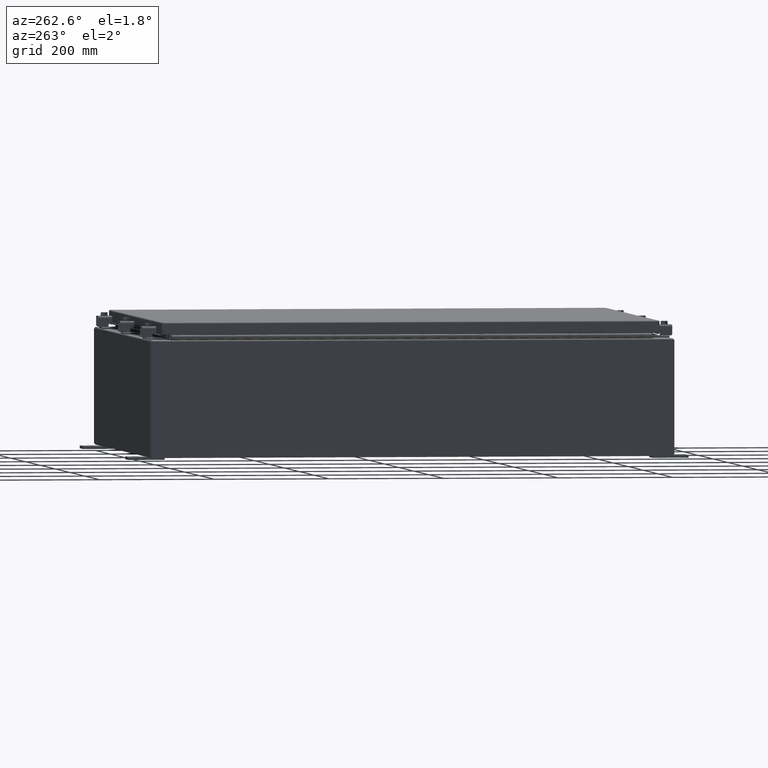
[diagram: clean part render]
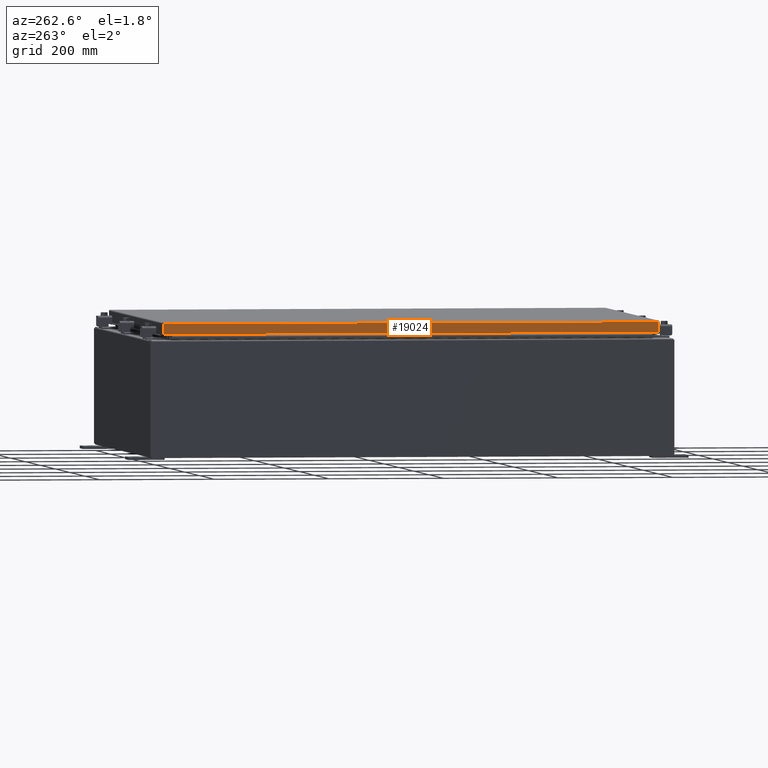
[diagram: same view with one face highlighted and labeled with its STEP entity id]
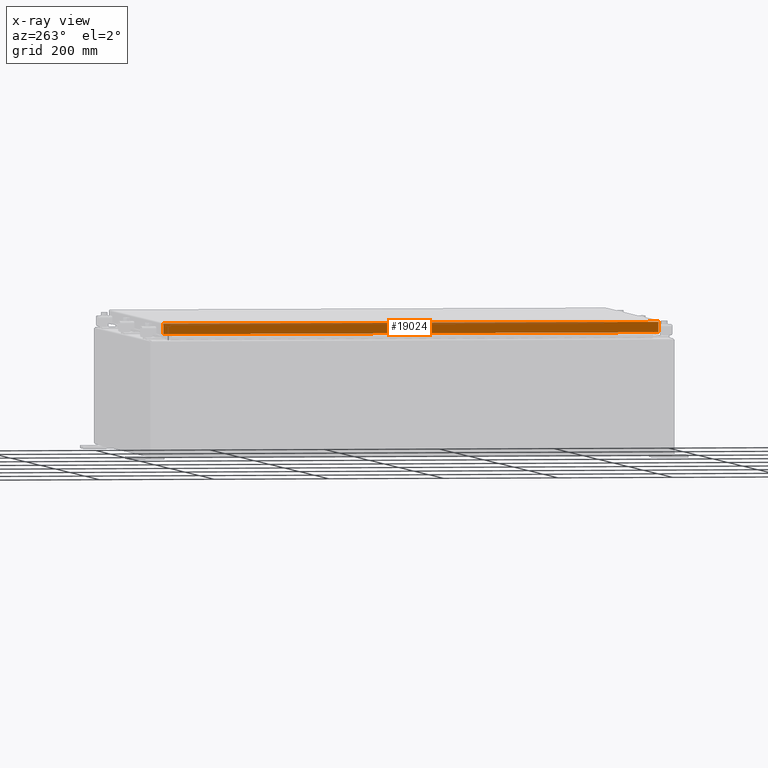
[diagram: x-ray of the same camera — body ghosted, the highlighted face saturated]
A machine part, auxiliary view. The second image highlights one B-rep face of the part: STEP entity #19024.
The next image is the same camera in x-ray: the body ghosted, the highlighted face saturated — about 0% of this face is hidden behind the body in this view.
In plain terms, the highlighted planar face has unit normal (1, 0, -0).
Its self-contained STEP definition (entity closure, byte-faithful):
#172 = EDGE_LOOP ( 'NONE', ( #13860, #35305, #18030, #18981 ) ) ;
#1883 = CARTESIAN_POINT ( 'NONE',  ( -14.07800000000000700, -5.290401063892181200E-030, 4.297518939368256700E-014 ) ) ;
#3512 = VERTEX_POINT ( 'NONE', #7607 ) ;
#4389 = CARTESIAN_POINT ( 'NONE',  ( -14.07800000000000800, -17.09400000000000100, -0.7949999999999997100 ) ) ;
#4414 = DIRECTION ( 'NONE',  ( -3.034122441942816500E-015, 6.982962677686265900E-015, -1.000000000000000000 ) ) ;
#4995 = LINE ( 'NONE', #4389, #39474 ) ;
#5216 = CARTESIAN_POINT ( 'NONE',  ( -14.07800000000000700, -17.09400000000000100, -0.08770000000000004200 ) ) ;
#5218 = DIRECTION ( 'NONE',  ( -3.034122441942816500E-015, 0.0000000000000000000, -1.000000000000000000 ) ) ;
#7607 = CARTESIAN_POINT ( 'NONE',  ( -14.07800000000000800, -17.00515786437626500, -0.7949999999999996000 ) ) ;
#8565 = CARTESIAN_POINT ( 'NONE',  ( -14.07800000000000700, -17.00515786437626900, -0.07469999999999976700 ) ) ;
#8892 = EDGE_CURVE ( 'NONE', #27915, #13190, #9506, .T. ) ;
#9356 = VECTOR ( 'NONE', #31904, 39.37007874015748100 ) ;
#9506 = LINE ( 'NONE', #5216, #36157 ) ;
#11902 = DIRECTION ( 'NONE',  ( 3.757920914826097400E-031, -1.000000000000000000, -1.107764513432648300E-045 ) ) ;
#13190 = VERTEX_POINT ( 'NONE', #26822 ) ;
#13860 = ORIENTED_EDGE ( 'NONE', *, *, #8892, .F. ) ;
#18030 = ORIENTED_EDGE ( 'NONE', *, *, #26909, .F. ) ;
#18429 = PLANE ( 'NONE',  #25748 ) ;
#18981 = ORIENTED_EDGE ( 'NONE', *, *, #23979, .F. ) ;
#19024 = ADVANCED_FACE ( 'NONE', ( #37906 ), #18429, .F. ) ;
#22269 = VERTEX_POINT ( 'NONE', #35753 ) ;
#23195 = EDGE_CURVE ( 'NONE', #27915, #22269, #27664, .T. ) ;
#23979 = EDGE_CURVE ( 'NONE', #13190, #3512, #42805, .T. ) ;
#25177 = DIRECTION ( 'NONE',  ( 1.000000000000000000, 3.757920914826096500E-031, -3.034122441942816500E-015 ) ) ;
#25748 = AXIS2_PLACEMENT_3D ( 'NONE', #1883, #25177, #5218 ) ;
#26822 = CARTESIAN_POINT ( 'NONE',  ( -14.07800000000000700, -17.00515786437626900, -0.08770000000000007000 ) ) ;
#26909 = EDGE_CURVE ( 'NONE', #3512, #22269, #4995, .T. ) ;
#27664 = LINE ( 'NONE', #37826, #35537 ) ;
#27692 = DIRECTION ( 'NONE',  ( 4.379057701015054300E-047, 1.000000000000000000, 1.238552822680358400E-016 ) ) ;
#27915 = VERTEX_POINT ( 'NONE', #29519 ) ;
#29519 = CARTESIAN_POINT ( 'NONE',  ( -14.07800000000000700, 17.00515786437627200, -0.08770000000000004200 ) ) ;
#31904 = DIRECTION ( 'NONE',  ( -3.034122441942816500E-015, 6.982962677686265900E-015, -1.000000000000000000 ) ) ;
#35305 = ORIENTED_EDGE ( 'NONE', *, *, #23195, .T. ) ;
#35537 = VECTOR ( 'NONE', #4414, 39.37007874015748100 ) ;
#35753 = CARTESIAN_POINT ( 'NONE',  ( -14.07800000000000800, 17.00515786437627600, -0.7949999999999954900 ) ) ;
#36157 = VECTOR ( 'NONE', #11902, 39.37007874015748100 ) ;
#37826 = CARTESIAN_POINT ( 'NONE',  ( -14.07800000000000700, 17.00515786437627200, 1.617215720887851800E-013 ) ) ;
#37906 = FACE_OUTER_BOUND ( 'NONE', #172, .T. ) ;
#39474 = VECTOR ( 'NONE', #27692, 39.37007874015748100 ) ;
#42805 = LINE ( 'NONE', #8565, #9356 ) ;